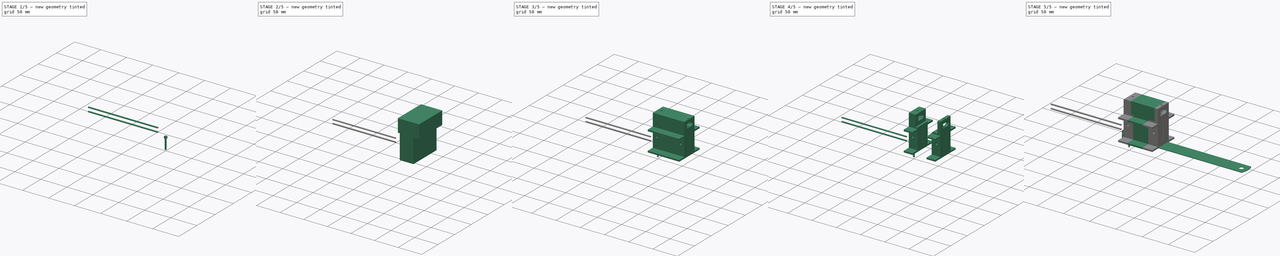
[diagram: build sequence overview — one tinted view per stage of 5, left to right]
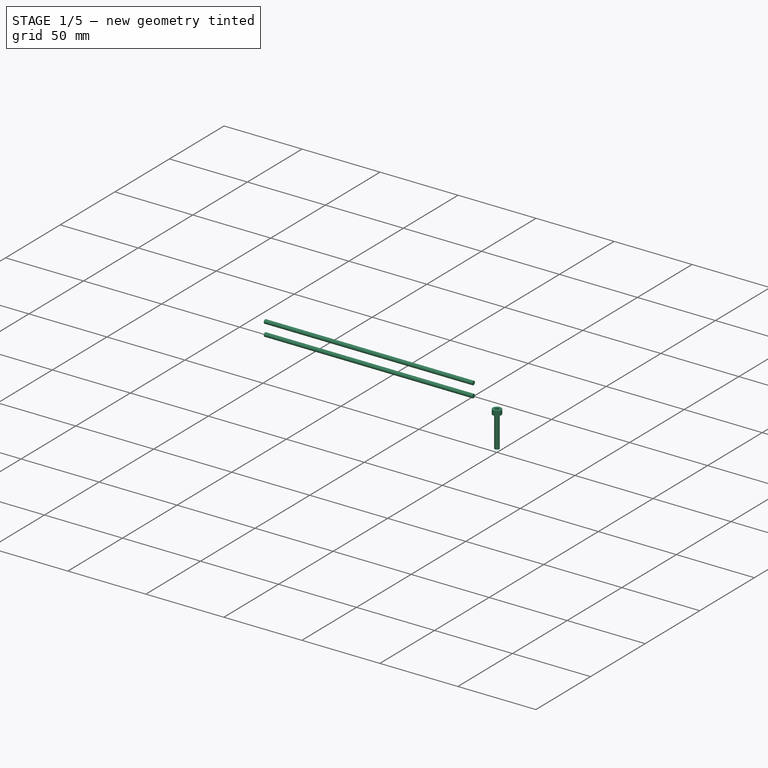
[diagram: stage 1 of 5 — iso view after this stage's code; geometry added in this stage tinted green]
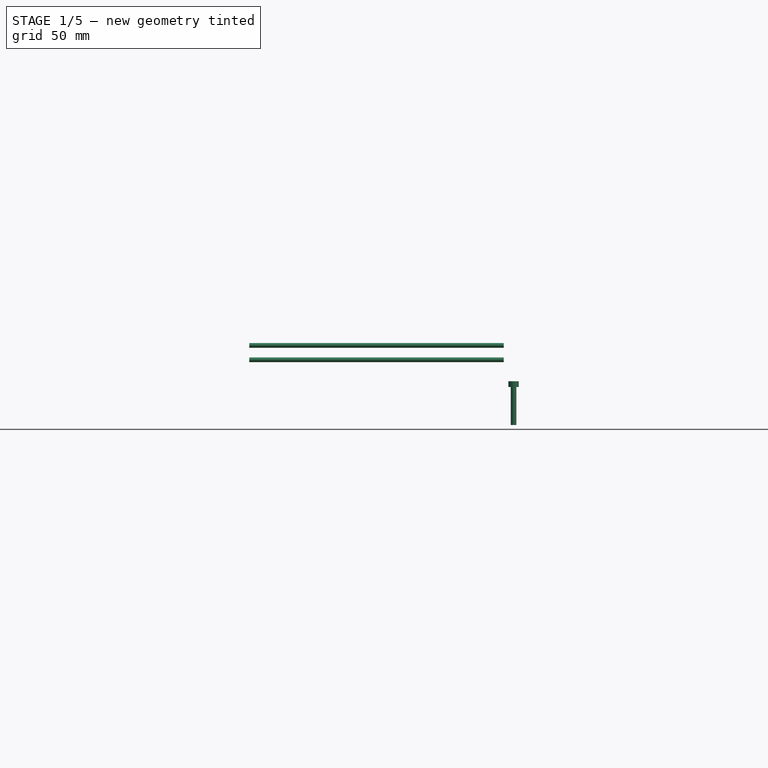
[diagram: stage 1 of 5 — front view after this stage's code; geometry added in this stage tinted green]
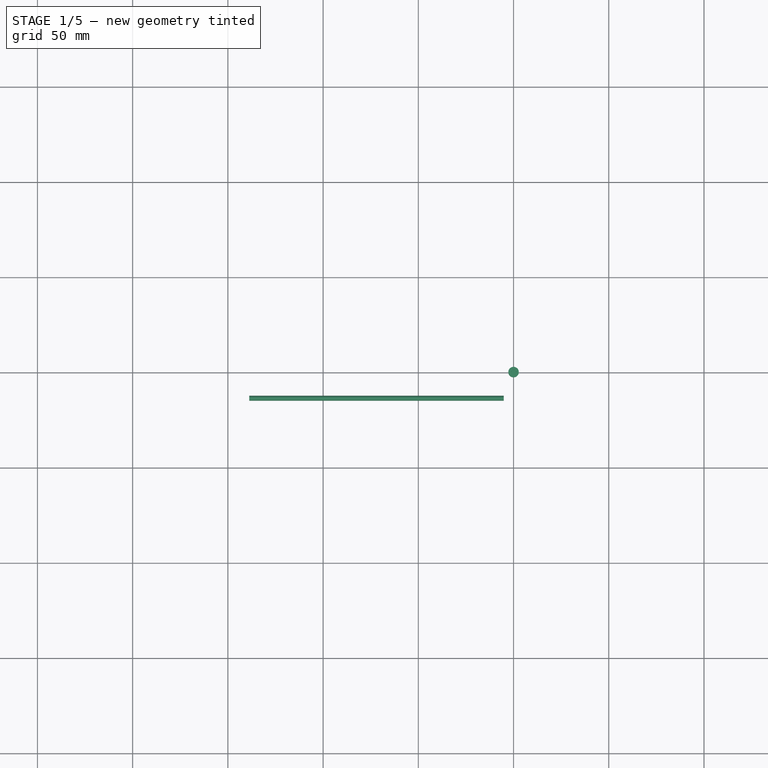
[diagram: stage 1 of 5 — top view after this stage's code; geometry added in this stage tinted green]
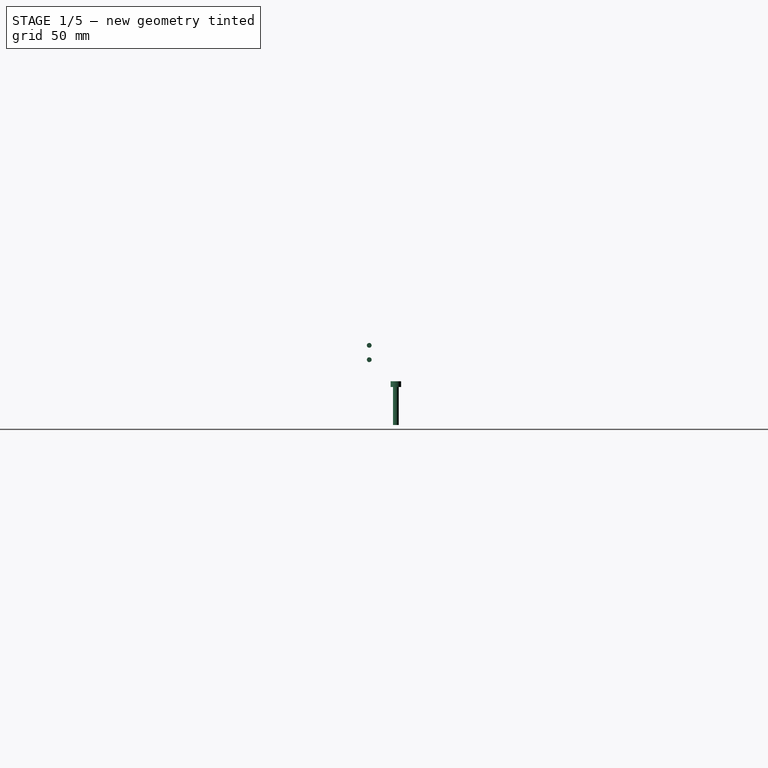
[diagram: stage 1 of 5 — right view after this stage's code; geometry added in this stage tinted green]
FCSTD DOCUMENT  (FreeCAD 0.19R24267 +148 (Git))
Label: outillageXT_v2_014
License: All rights reserved
LicenseURL: http://en.wikipedia.org/wiki/All_rights_reserved
objects: Sketcher::SketchObject×14, PartDesign::Body×10, PartDesign::Pad×9, App::Part×8, PartDesign::Plane×7, Part::Feature×6, Spreadsheet::Sheet×5, PartDesign::Pocket×4, Part::FeaturePython×4, PartDesign::Chamfer×4, PartDesign::FeatureBase×2, App::Link×2, Part::Compound2×1, App::DocumentObjectGroup×1
note: 77 computed .brp shape members not serialized (recipe doc carries the construction recipe); baked Part::Feature solids carry a one-line shape summary decoded from their .brp

FEATURE [PartDesign::Body] Body005  label="outillageMale"
  BaseFeature = -> Slice_child2
  Group = -> [Clone001,Chamfer002]
  Origin = -> Origin010
  Placement = pos=(89.6,0,0) rot=(0,0,1;0rad)
  Tip = -> Chamfer002
FEATURE [Part::Feature] Part__Feature  label="XT60FemaleConnector"
  Placement = pos=(8,-0.1,57.1) rot=(1,0,0;1.5708rad)
  shape: bbox 20.5 x 16.55 x 7.501 mm, 417 faces, 3 solids (baked)
FEATURE [Sketcher::SketchObject] Sketch006
  FullyConstrained = false
  MapMode = 5
  Support = -> [XY_Plane010]
  sketch-geometry (1):
    g0: Circle CenterX=0 CenterY=0 CenterZ=0 NormalX=0 NormalY=0 NormalZ=1 AngleXU=0 Radius=2.75
  constraints (2):
    c: Coincident(g0,g-1)
    c: Diameter(g0) = 5.5
FEATURE [PartDesign::Pad] Pad003  label="tete"
  AllowMultiFace = false
  Direction = (1,1,1)
  Length = 3
  Length2 = 100
  Profile = -> Sketch006
  Type = 0
FEATURE [Sketcher::SketchObject] Sketch007
  FullyConstrained = false
  MapMode = 5
  Placement = pos=(0,0,0) rot=(1,0,0;3.14159rad)
  Support = -> [Pad003]
  sketch-geometry (1):
    g0: Circle CenterX=0 CenterY=0 CenterZ=0 NormalX=0 NormalY=0 NormalZ=1 AngleXU=0 Radius=1.5
  constraints (2):
    c: Coincident(g0,g-1)
    c: Diameter(g0) = 3
FEATURE [PartDesign::Pad] Pad004  label="corps"
  AllowMultiFace = false
  BaseFeature = -> Pad003
  Direction = (1,1,1)
  Length = 20
  Length2 = 100
  Profile = -> Sketch007
  Type = 0
FEATURE [PartDesign::Plane] DatumPlane003  label="DatumPlane"
  AttachmentOffset = pos=(0,0,3) rot=(0,0,1;0rad)
  Length = 60
  MapMode = 5
  Placement = pos=(0,0,3) rot=(0,0,1;0rad)
  ResizeMode = 0
  Support = -> [XY_Plane010]
  Width = 60
FEATURE [Sketcher::SketchObject] Sketch008
  FullyConstrained = false
  MapMode = 5
  Placement = pos=(0,0,3) rot=(0,0,1;0rad)
  Support = -> [DatumPlane003]
  sketch-geometry (7):
    g0: LineSegment StartX=0.721688 StartY=-1.25 StartZ=0 EndX=1.44338 EndY=1.0119e-12 EndZ=0
    g1: LineSegment StartX=1.44338 StartY=1.0119e-12 StartZ=0 EndX=0.721688 EndY=1.25 EndZ=0
    g2: LineSegment StartX=0.721688 StartY=1.25 StartZ=0 EndX=-0.721688 EndY=1.25 EndZ=0
    g3: LineSegment StartX=-0.721688 StartY=1.25 StartZ=0 EndX=-1.44338 EndY=8.689e-13 EndZ=0
    g4: LineSegment StartX=-1.44338 StartY=8.689e-13 StartZ=0 EndX=-0.721688 EndY=-1.25 EndZ=0
    g5: LineSegment StartX=-0.721688 StartY=-1.25 StartZ=0 EndX=0.721688 EndY=-1.25 EndZ=0
    g6: Circle CenterX=0 CenterY=0 CenterZ=0 NormalX=0 NormalY=0 NormalZ=1 AngleXU=0 Radius=1.44338
  constraints (16):
    c: Coincident(g0,g1)
    c: Coincident(g1,g2)
    c: Coincident(g2,g3)
    c: Coincident(g3,g4)
    c: Coincident(g4,g5)
    c: Coincident(g5,g0)
    c: Equal(g0, g1-g5) x5
    c: PointOnObject(g0,g6)
    c: PointOnObject(g1,g6)
    c: PointOnObject(g2,g6)
    c: PointOnObject(g3,g6)
    c: PointOnObject(g4,g6)
    c: PointOnObject(g5,g6)
    c: Coincident(g6,g-1)
    c: Horizontal(g2)
    c: DistanceY(g0,g1) = 2.5
FEATURE [PartDesign::Pocket] Pocket002  label="emprunte"
  AllowMultiFace = false
  BaseFeature = -> Pad004
  Length = 4
  Length2 = 100
  Profile = -> Sketch008
  Type = 0
FEATURE [PartDesign::Body] Body008  label="visTHCM3x10"
  Group = -> [Sketch012,Pad007,Sketch013,Pad008,DatumPlane005,Sketch014,Pocket004]
  Origin = -> Origin015
  Tip = -> Pocket004
FEATURE [App::Link] Link  label="visM3x10Insert__002"
  LinkPlacement = pos=(151.8,-2.66194e-05,71.2) rot=(0,0,1;0rad)
  LinkedObject = -> Part004
  Placement = pos=(151.8,-2.66194e-05,71.2) rot=(0,0,1;0rad)
FEATURE [Part::Feature] Solid005  label="RUTHEX_M3x5_009"
  Placement = pos=(-11,0,0) rot=(0,0,1;0rad)
  shape: bbox 4.583 x 5.705 x 4.583 mm, 200 faces (baked)
FEATURE [App::Part] Part007  label="ZSB_RUTHEX_M3_5.008"
  Group = -> [Solid005]
  Origin = -> Origin017
  Placement = pos=(11,-1.1e-15,-4.8) rot=(1,0,0;4.71239rad)
FEATURE [App::Part] Part006  label="visM2x20Insert"
  Group = -> [Body006,Part007]
  Origin = -> Origin016
  Placement = pos=(8,19.8,25) rot=(1,0,0;4.71239rad)
FEATURE [App::Link] Link001  label="visM2x20Insert001"
  LinkPlacement = pos=(146.5,19.8,25) rot=(-1,0,0;1.5708rad)
  LinkedObject = -> Part006
  Placement = pos=(146.5,19.8,25) rot=(-1,0,0;1.5708rad)
FEATURE [Spreadsheet::Sheet] Spreadsheet004  label="tige"
  cells = A2=planBaseTigeposX; B2(planBaseTigeposX)==xtDistCorpBaseConnect; A3=xtDistCorpBaseConnect; B3(xtDistCorpBaseConnect)==12.13 - 6.95; C3=male; D3=8.46 (du bor à l'épaulement)-prof connection (6.95); A4=xtFemdistBaseConnect; B4(xtFemdistBaseConnect)==20.4 - 9.300000000000001; C4=femelle; D4=20.39(hors tou) 17.15 (du bord à l'épaulment connecteur); A5=tigeLong; B5(tigeLong)=133.62; A6=tigeJeu; B6(tigeJeu)=0.1; A7=tigePosX; B7(tigePosX)=14; A8=tigePosY; B8(tigePosY)=14.3; A9=tigeDiam; B9(tigeDiam)=2.5; A10=xtEcartBroches; B10(xtEcartBroches)=7.56
FEATURE [PartDesign::Plane] DatumPlane012  label="planBaseTige"
  AttachmentOffset = pos=(0,0,-5.18) rot=(0,0,1;0rad)
  Length = 60
  MapMode = 5
  Placement = pos=(-5.18,1.2e-15,-1.2e-15) rot=(0.57735,0.57735,0.57735;2.0944rad)
  ResizeMode = 0
  Support = -> [YZ_Plane015]
  Width = 60
  expr: .AttachmentOffset.Base.z = -<<tige>>.planBaseTigeposX
FEATURE [Sketcher::SketchObject] Sketch032  label="sk_tiges"
  FullyConstrained = true
  MapMode = 5
  Placement = pos=(-5.18,1.2e-15,-1.2e-15) rot=(0.57735,0.57735,0.57735;2.0944rad)
  Support = -> [DatumPlane012]
  expr: Constraints[2] = <<tige>>.tigePosX
  expr: Constraints[1] = <<tige>>.tigePosY
  expr: Constraints[0] = <<tige>>.tigeDiam
  sketch-geometry (1):
    g0: Circle CenterX=-14 CenterY=14.3 CenterZ=0 NormalX=0 NormalY=0 NormalZ=1 AngleXU=0 Radius=1.25
  constraints (3):
    c: Diameter(g0) = 2.5
    c: DistanceY(g-1,g0) = 14.3
    c: DistanceX(g0,g-1) = 14
FEATURE [PartDesign::Pad] Pad017  label="tigeBasse"
  AllowMultiFace = false
  Direction = (1,1,1)
  Length = 133.62
  Length2 = 100
  Placement = pos=(-5.18,1e-15,-1e-15) rot=(0.57735,0.57735,0.57735;2.0944rad)
  Profile = -> Sketch032
  Reversed = true
  Type = 0
  expr: Length = <<tige>>.tigeLong
FEATURE [PartDesign::Body] Body007  label="tigeLaiton"
  Group = -> [DatumPlane012,Sketch032,Pad017]
  Origin = -> Origin018
  Tip = -> Pad017
FEATURE [PartDesign::Plane] DatumPlane013  label="planTige2"
  AttachmentOffset = pos=(0,0,-5.18) rot=(0,0,1;0rad)
  Length = 60
  MapMode = 5
  Placement = pos=(-5.18,1.2e-15,-1.2e-15) rot=(0.57735,0.57735,0.57735;2.0944rad)
  ResizeMode = 0
  Support = -> [YZ_Plane017]
  Width = 60
  expr: .AttachmentOffset.Base.z = -<<tige>>.planBaseTigeposX
FEATURE [Sketcher::SketchObject] Sketch033  label="sk_tige2"
  FullyConstrained = true
  MapMode = 5
  Placement = pos=(-5.18,1.2e-15,-1.2e-15) rot=(0.57735,0.57735,0.57735;2.0944rad)
  Support = -> [DatumPlane013]
  expr: Constraints[2] = <<tige>>.tigePosY + <<tige>>.xtEcartBroches
  expr: Constraints[1] = <<tige>>.tigePosX
  expr: Constraints[0] = <<tige>>.tigeDiam
  sketch-geometry (1):
    g0: Circle CenterX=-14 CenterY=21.86 CenterZ=0 NormalX=0 NormalY=0 NormalZ=1 AngleXU=0 Radius=1.25
  constraints (3):
    c: Diameter(g0) = 2.5
    c: DistanceX(g0,g-1) = 14
    c: DistanceY(g-1,g0) = 21.86
FEATURE [PartDesign::Pad] Pad018
  AllowMultiFace = false
  Direction = (1,1,1)
  Length = 133.62
  Length2 = 100
  Placement = pos=(-5.18,1e-15,-1e-15) rot=(0.57735,0.57735,0.57735;2.0944rad)
  Profile = -> Sketch033
  Reversed = true
  Type = 0
  expr: Length = <<tige>>.tigeLong
FEATURE [PartDesign::Body] Body009  label="tige2"
  Group = -> [DatumPlane013,Sketch033,Pad018]
  Origin = -> Origin020
  Tip = -> Pad018
FEATURE [App::Part] Part009  label="tigeLaiton001"
  Group = -> [Body007,Spreadsheet004,Body009]
  Origin = -> Origin019
  Placement = pos=(152.2,19.5,71) rot=(1,0,0;1.5708rad)
FEATURE [Spreadsheet::Sheet] Spreadsheet005  label="insert"
  cells = A1=trouDiam; B1(trouDiam)=4
FEATURE [App::Part] Part005  label="ZSB_RUTHEX_M3_5.7"
  Group = -> [Solid004,Spreadsheet005]
  Origin = -> Origin014
  Placement = pos=(11,-6e-16,-2.9) rot=(1,0,0;4.71239rad)
FEATURE [App::Part] Part004  label="visM3x10Insert__01"
  Group = -> [Part005,Body008]
  Origin = -> Origin013
  Placement = pos=(7,0,71.2) rot=(0,0,1;0rad)
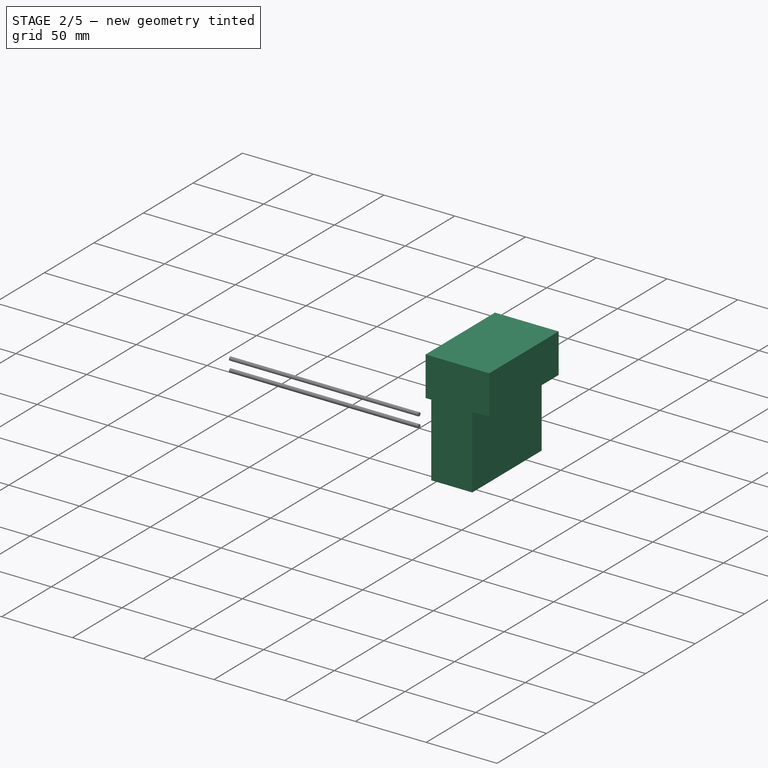
[diagram: stage 2 of 5 — iso view after this stage's code; geometry added in this stage tinted green]
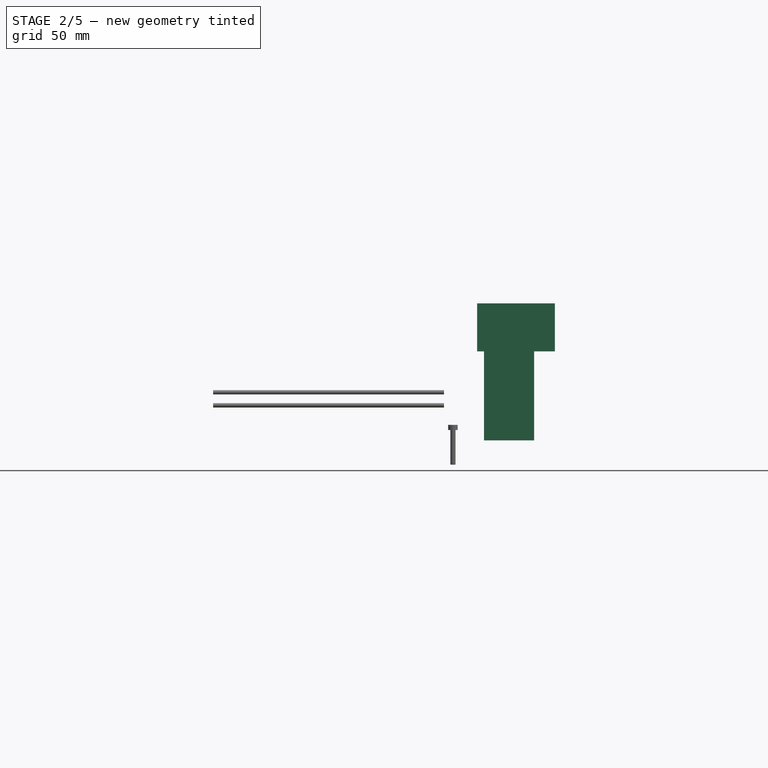
[diagram: stage 2 of 5 — front view after this stage's code; geometry added in this stage tinted green]
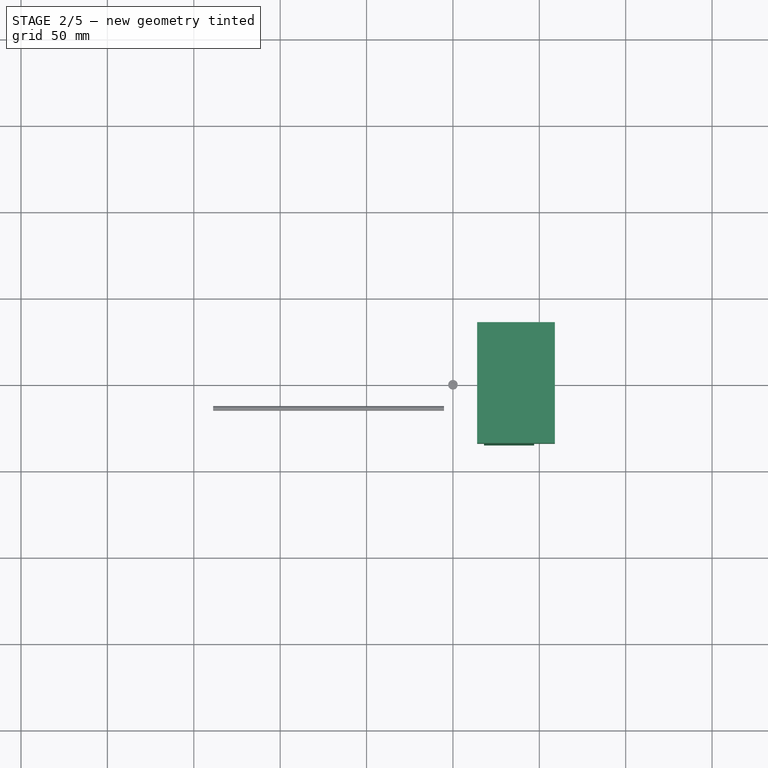
[diagram: stage 2 of 5 — top view after this stage's code; geometry added in this stage tinted green]
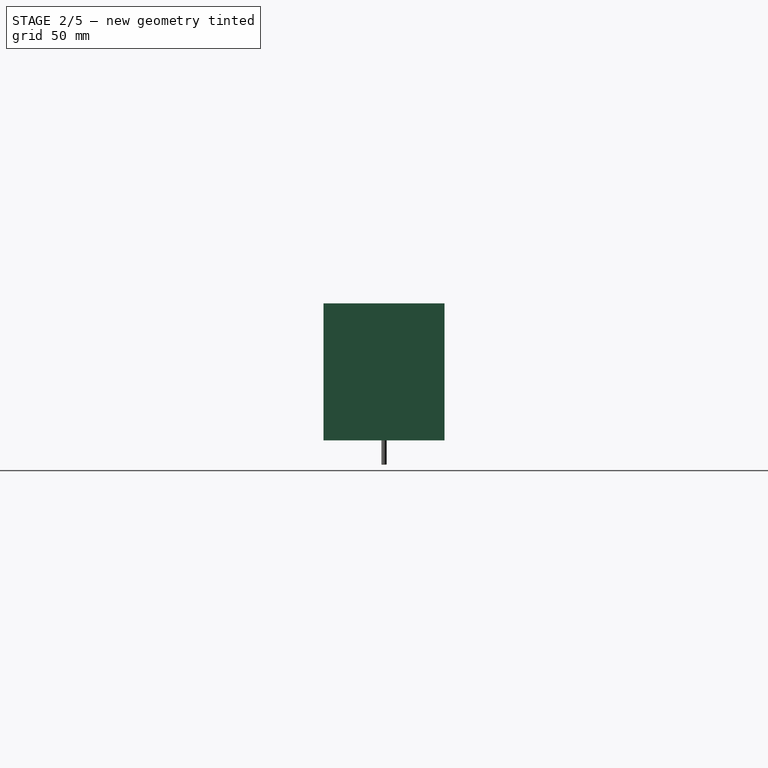
[diagram: stage 2 of 5 — right view after this stage's code; geometry added in this stage tinted green]
FEATURE [PartDesign::Body] Body  label="outillageXtBdy"
  Group = -> [Sketch002,Pad001,DatumPlane,Sketch003,Pocket,DatumPlane001,Sketch004,Pocket001]
  Origin = -> Origin007
  Tip = -> Pocket001
FEATURE [PartDesign::Plane] DatumPlane002
  AttachmentOffset = pos=(0,0,35) rot=(0,0,1;0rad)
  Length = 102.174
  MapMode = 5
  Placement = pos=(0,-35,-7.8e-15) rot=(1,0,0;1.5708rad)
  ResizeMode = 0
  Support = -> [XZ_Plane007]
  Width = 116.474
  expr: .AttachmentOffset.Base.z = <<outillageXtSp>>.ep / 2 + <<outillageXtSp>>.piedLong + 5
FEATURE [Sketcher::SketchObject] Sketch005
  FullyConstrained = true
  MapMode = 5
  Placement = pos=(0,-35,-7.8e-15) rot=(1,0,0;1.5708rad)
  Support = -> [DatumPlane002]
  expr: Constraints[20] = <<outillageXtSp>>.outillargInit - <<outillageXtSp>>.OreilleMaleLarg
  expr: Constraints[16] = <<outillageXtSp>>.hauteurTotale + 5
  expr: Constraints[22] = <<outillageXtSp>>.baseLarg
  expr: Constraints[17] = <<outillageXtSp>>.reglettePosVert + <<regletSp>>.larg + <<outillageXtSp>>.xtRegletDist / 2
  expr: Constraints[23] = <<outillageXtSp>>.outillargInit - <<outillageXtSp>>.baseLarg
  expr: Constraints[19] = <<outillageXtSp>>.OreilleFemLarg
  sketch-geometry (8):
    g0: LineSegment StartX=14 StartY=73.3 StartZ=0 EndX=14 EndY=45.5 EndZ=0
    g1: LineSegment StartX=14 StartY=45.5 StartZ=0 EndX=18 EndY=45.5 EndZ=0
    g2: LineSegment StartX=18 StartY=45.5 StartZ=0 EndX=18 EndY=-6 EndZ=0
    g3: LineSegment StartX=18 StartY=-6 StartZ=0 EndX=47 EndY=-6 EndZ=0
    g4: LineSegment StartX=47 StartY=-6 StartZ=0 EndX=47 EndY=45.5 EndZ=0
    g5: LineSegment StartX=47 StartY=45.5 StartZ=0 EndX=59 EndY=45.5 EndZ=0
    g6: LineSegment StartX=59 StartY=45.5 StartZ=0 EndX=59 EndY=73.3 EndZ=0
    g7: LineSegment StartX=59 StartY=73.3 StartZ=0 EndX=14 EndY=73.3 EndZ=0
  constraints (24):
    c: Vertical(g0)
    c: Coincident(g0,g1)
    c: Horizontal(g1)
    c: Coincident(g1,g2)
    c: Vertical(g2)
    c: Horizontal(g3)
    c: Coincident(g3,g4)
    c: Vertical(g4)
    c: Coincident(g4,g5)
    c: Horizontal(g5)
    c: Coincident(g5,g6)
    c: Vertical(g6)
    c: Coincident(g6,g7)
    c: Coincident(g7,g0)
    c: Horizontal(g7)
    c: DistanceY(g2,g-1) = 6
    c: DistanceY(g-1,g0) = 73.3
    c: DistanceY(g-1,g0) = 45.5
    c: Horizontal(g1,g4)
    c: DistanceX(g-1,g0) = 14
    c: DistanceX(g-1,g5) = 59
    c: Coincident(g3,g2)
    c: DistanceX(g-1,g2) = 18
    c: DistanceX(g-1,g3) = 47
FEATURE [PartDesign::Pad] Pad002
  Direction = (1,1,1)
  Length = 70
  Length2 = 100
  Placement = pos=(0,-35,-8e-15) rot=(1,0,0;1.5708rad)
  Profile = -> Sketch005
  Reversed = true
  Type = 0
  expr: Length = <<outillageXtSp>>.ep + 2 * <<outillageXtSp>>.piedLong + 10
FEATURE [PartDesign::Chamfer] Chamfer004
  Angle = 45
  Base = -> Pocket002 [Edge12,Edge2,Edge3]
  BaseFeature = -> Pocket002
  ChamferType = 0
  FlipDirection = false
  Size = 0.2
  Size2 = 1
  SupportTransform = false
FEATURE [PartDesign::Body] Body006  label="visTHCM3x20_001"
  Group = -> [Sketch006,Pad003,Sketch007,Pad004,DatumPlane003,Sketch008,Pocket002,Chamfer004]
  Origin = -> Origin011
  Tip = -> Chamfer004
FEATURE [Part::Feature] Solid004  label="RUTHEX_M3x5_008"
  Placement = pos=(-11,0,0) rot=(0,0,1;0rad)
  shape: bbox 4.583 x 5.705 x 4.583 mm, 200 faces (baked)
FEATURE [Sketcher::SketchObject] Sketch012
  FullyConstrained = false
  MapMode = 5
  Support = -> [XY_Plane013]
  sketch-geometry (1):
    g0: Circle CenterX=0 CenterY=0 CenterZ=0 NormalX=0 NormalY=0 NormalZ=1 AngleXU=0 Radius=2.75
  constraints (2):
    c: Coincident(g0,g-1)
    c: Diameter(g0) = 5.5
FEATURE [PartDesign::Pad] Pad007  label="tete002"
  AllowMultiFace = false
  Direction = (1,1,1)
  Length = 3
  Length2 = 100
  Profile = -> Sketch012
  Type = 0
FEATURE [Sketcher::SketchObject] Sketch013
  FullyConstrained = false
  MapMode = 5
  Placement = pos=(0,0,0) rot=(1,0,0;3.14159rad)
  Support = -> [Pad007]
  sketch-geometry (1):
    g0: Circle CenterX=0 CenterY=0 CenterZ=0 NormalX=0 NormalY=0 NormalZ=1 AngleXU=0 Radius=1.5
  constraints (2):
    c: Coincident(g0,g-1)
    c: Diameter(g0) = 3
FEATURE [PartDesign::Pad] Pad008  label="corps002"
  AllowMultiFace = false
  BaseFeature = -> Pad007
  Direction = (1,1,1)
  Length = 10
  Length2 = 100
  Profile = -> Sketch013
  Type = 0
FEATURE [PartDesign::Plane] DatumPlane005
  AttachmentOffset = pos=(0,0,3) rot=(0,0,1;0rad)
  Length = 60
  MapMode = 5
  Placement = pos=(0,0,3) rot=(0,0,1;0rad)
  ResizeMode = 0
  Support = -> [XY_Plane013]
  Width = 60
FEATURE [Sketcher::SketchObject] Sketch014
  FullyConstrained = false
  MapMode = 5
  Placement = pos=(0,0,3) rot=(0,0,1;0rad)
  Support = -> [DatumPlane005]
  sketch-geometry (7):
    g0: LineSegment StartX=0.721688 StartY=-1.25 StartZ=0 EndX=1.44338 EndY=1.0119e-12 EndZ=0
    g1: LineSegment StartX=1.44338 StartY=1.0119e-12 StartZ=0 EndX=0.721688 EndY=1.25 EndZ=0
    g2: LineSegment StartX=0.721688 StartY=1.25 StartZ=0 EndX=-0.721688 EndY=1.25 EndZ=0
    g3: LineSegment StartX=-0.721688 StartY=1.25 StartZ=0 EndX=-1.44338 EndY=8.689e-13 EndZ=0
    g4: LineSegment StartX=-1.44338 StartY=8.689e-13 StartZ=0 EndX=-0.721688 EndY=-1.25 EndZ=0
    g5: LineSegment StartX=-0.721688 StartY=-1.25 StartZ=0 EndX=0.721688 EndY=-1.25 EndZ=0
    g6: Circle CenterX=0 CenterY=0 CenterZ=0 NormalX=0 NormalY=0 NormalZ=1 AngleXU=0 Radius=1.44338
  constraints (16):
    c: Coincident(g0,g1)
    c: Coincident(g1,g2)
    c: Coincident(g2,g3)
    c: Coincident(g3,g4)
    c: Coincident(g4,g5)
    c: Coincident(g5,g0)
    c: Equal(g0, g1-g5) x5
    c: PointOnObject(g0,g6)
    c: PointOnObject(g1,g6)
    c: PointOnObject(g2,g6)
    c: PointOnObject(g3,g6)
    c: PointOnObject(g4,g6)
    c: PointOnObject(g5,g6)
    c: Coincident(g6,g-1)
    c: Horizontal(g2)
    c: DistanceY(g0,g1) = 2.5
FEATURE [PartDesign::Pocket] Pocket004  label="emprunte002"
  AllowMultiFace = false
  BaseFeature = -> Pad008
  Length = 4
  Length2 = 100
  Profile = -> Sketch014
  Type = 0
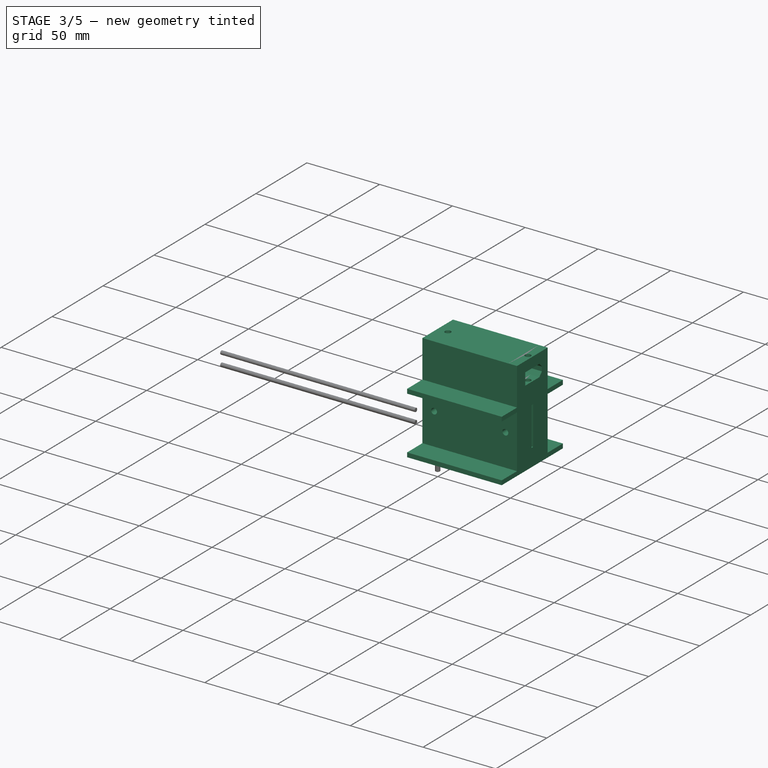
[diagram: stage 3 of 5 — iso view after this stage's code; geometry added in this stage tinted green]
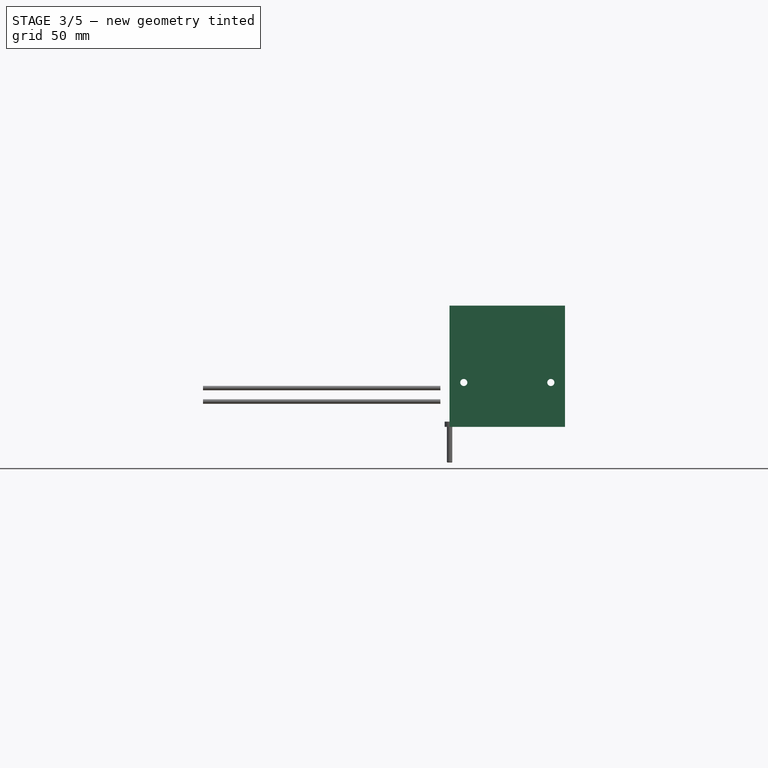
[diagram: stage 3 of 5 — front view after this stage's code; geometry added in this stage tinted green]
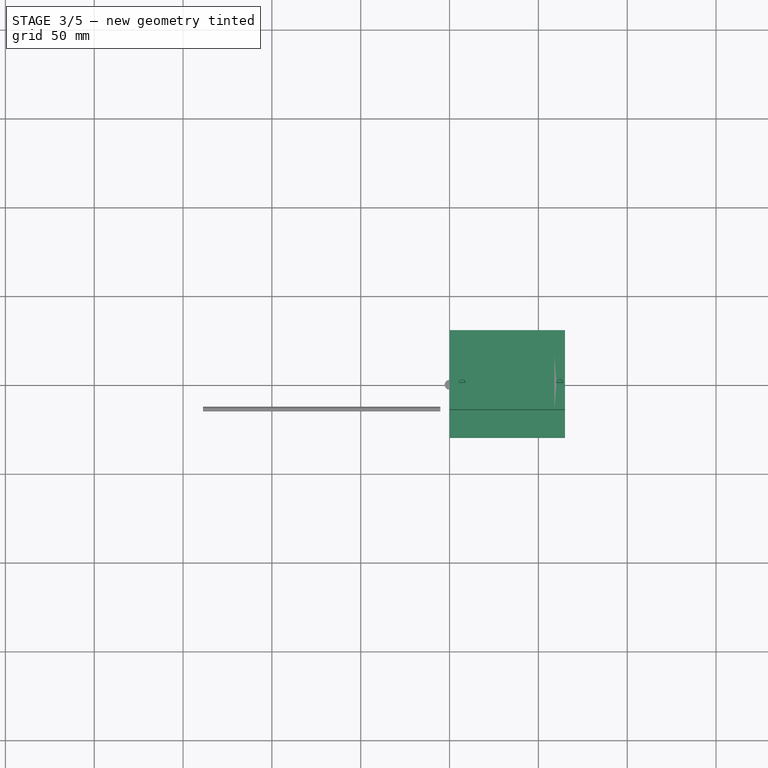
[diagram: stage 3 of 5 — top view after this stage's code; geometry added in this stage tinted green]
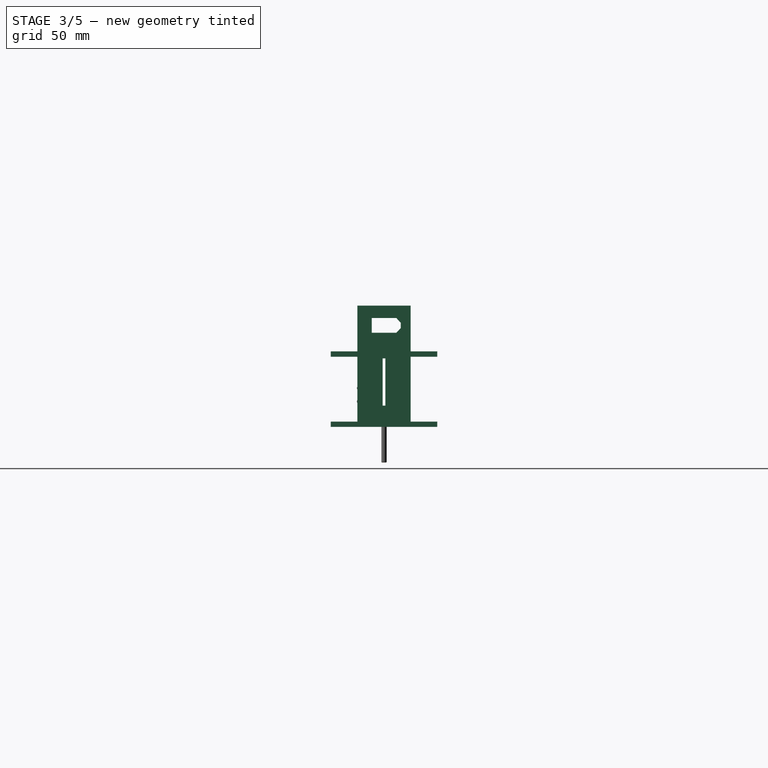
[diagram: stage 3 of 5 — right view after this stage's code; geometry added in this stage tinted green]
FEATURE [PartDesign::Body] Body001  label="regletBdy"
  Group = -> [Sketch,Pad]
  Origin = -> Origin003
  Tip = -> Pad
FEATURE [App::Part] Part001  label="reglet"
  Group = -> [Body001,Spreadsheet001]
  Origin = -> Origin002
  Placement = pos=(0,-5.6e-15,25.3) rot=(1,0,0;1.5708rad)
FEATURE [Spreadsheet::Sheet] Spreadsheet  label="outillageXtSp"
  cells = A1=renfortEp; B1(renfortEp)=7; A2=jeuFonct; B2(jeuFonct)=0.6; A3=reglettePosVert; B3(reglettePosVert)=12; A4=xtRegletDist; B4(xtRegletDist)=15; A5=xtPosVert; B5(xtPosVert)==reglettePosVert + <<regletSp>>.larg + xtRegletDist; A6=ep; B6(ep)=30; A7=piedLong; B7(piedLong)=15; A8=piedLarg; B8(piedLarg)=20; A9=insertPosVert; B9(insertPosVert)==reglettePosVert + <<regletSp>>.larg / 2; A10=insertPosHor; B10(insertPosHor)=8; A11=piedEp; B11(piedEp)=3; A12=outillargInit; B12(outillargInit)=65; A13=OreilleMaleLarg; B13(OreilleMaleLarg)=6; A14=hauteurTotale; B14(hauteurTotale)==xtPosVert + renfortEp + <<xtSp>>.base; A15=OreilleFemLarg; B15(OreilleFemLarg)=14; A16=baseLarg; B16(baseLarg)=18
FEATURE [Sketcher::SketchObject] Sketch002
  FullyConstrained = true
  MapMode = 5
  Placement = pos=(0,0,0) rot=(0.57735,0.57735,0.57735;2.0944rad)
  Support = -> [YZ_Plane]
  expr: Constraints[19] = <<outillageXtSp>>.ep
  expr: Constraints[21] = <<outillageXtSp>>.piedEp
  expr: Constraints[30] = <<regletSp>>.ep + <<outillageXtSp>>.jeuFonct
  expr: Constraints[31] = <<outillageXtSp>>.reglettePosVert
  expr: Constraints[44] = <<xtSp>>.base
  expr: Constraints[48] = <<xtSp>>.fetierLarg
  expr: Constraints[52] = <<outillageXtSp>>.xtPosVert
  expr: Constraints[46] = <<xtSp>>.haut + <<outillageXtSp>>.jeuFonct
  expr: Constraints[70] = <<outillageXtSp>>.piedEp
  expr: Constraints[29] = <<regletSp>>.larg + <<outillageXtSp>>.jeuFonct
  expr: Constraints[47] = <<xtSp>>.toitHaut
  expr: Constraints[20] = <<outillageXtSp>>.piedLong
  expr: Constraints[33] = <<outillageXtSp>>.hauteurTotale
  expr: Constraints[71] = <<outillageXtSp>>.reglettePosVert + <<regletSp>>.larg + <<outillageXtSp>>.xtRegletDist / 2 - 3
  sketch-geometry (28):
    g0: LineSegment StartX=30 StartY=0 StartZ=0 EndX=-30 EndY=0 EndZ=0
    g1: LineSegment StartX=-30 StartY=0 StartZ=0 EndX=-30 EndY=3 EndZ=0
    g2: LineSegment StartX=-30 StartY=3 StartZ=0 EndX=-15 EndY=3 EndZ=0
    g3: LineSegment StartX=-15 StartY=3 StartZ=0 EndX=-15 EndY=39.5 EndZ=0
    g4: LineSegment StartX=30 StartY=0 StartZ=0 EndX=30 EndY=3 EndZ=0
    g5: LineSegment StartX=30 StartY=3 StartZ=0 EndX=15 EndY=3 EndZ=0
    g6: LineSegment StartX=15 StartY=3 StartZ=0 EndX=15 EndY=39.5 EndZ=0
    g7: LineSegment StartX=-15 StartY=68.3 StartZ=0 EndX=15 EndY=68.3 EndZ=0
    g8: LineSegment StartX=0.8 StartY=38.6 StartZ=0 EndX=-0.8 EndY=38.6 EndZ=0
    g9: LineSegment StartX=-0.8 StartY=38.6 StartZ=0 EndX=-0.8 EndY=12 EndZ=0
    g10: LineSegment StartX=-0.8 StartY=12 StartZ=0 EndX=0.8 EndY=12 EndZ=0
    g11: LineSegment StartX=0.8 StartY=12 StartZ=0 EndX=0.8 EndY=38.6 EndZ=0
    g12: LineSegment StartX=-6.925 StartY=53 StartZ=0 EndX=6.925 EndY=53 EndZ=0
    g13: LineSegment StartX=6.925 StartY=53 StartZ=0 EndX=9.425 EndY=55.65 EndZ=0
    g14: LineSegment StartX=9.425 StartY=55.65 StartZ=0 EndX=9.425 EndY=58.65 EndZ=0
    g15: LineSegment StartX=9.425 StartY=58.65 StartZ=0 EndX=6.925 EndY=61.3 EndZ=0
    g16: LineSegment StartX=6.925 StartY=61.3 StartZ=0 EndX=-6.925 EndY=61.3 EndZ=0
    g17: LineSegment StartX=-6.925 StartY=61.3 StartZ=0 EndX=-6.925 EndY=53 EndZ=0
    g18: LineSegment StartX=0 StartY=0 StartZ=0 EndX=0 EndY=53 EndZ=0
    g19: LineSegment StartX=-6.925 StartY=57.15 StartZ=0 EndX=9.425 EndY=57.15 EndZ=0
    g20: LineSegment StartX=-15 StartY=42.5 StartZ=0 EndX=-30 EndY=42.5 EndZ=0
    g21: LineSegment StartX=-30 StartY=42.5 StartZ=0 EndX=-30 EndY=39.5 EndZ=0
    g22: LineSegment StartX=-30 StartY=39.5 StartZ=0 EndX=-15 EndY=39.5 EndZ=0
    g23: LineSegment StartX=15 StartY=42.5 StartZ=0 EndX=30 EndY=42.5 EndZ=0
    g24: LineSegment StartX=30 StartY=42.5 StartZ=0 EndX=30 EndY=39.5 EndZ=0
    g25: LineSegment StartX=30 StartY=39.5 StartZ=0 EndX=15 EndY=39.5 EndZ=0
    g26: LineSegment StartX=15 StartY=42.5 StartZ=0 EndX=15 EndY=68.3 EndZ=0
    g27: LineSegment StartX=-15 StartY=42.5 StartZ=0 EndX=-15 EndY=68.3 EndZ=0
  constraints (78):
    c: PointOnObject(g0,g-1)
    c: PointOnObject(g0,g-1)
    c: Coincident(g0,g1)
    c: Vertical(g1)
    c: Coincident(g1,g2)
    c: Horizontal(g2)
    c: Coincident(g2,g3)
    c: Vertical(g3)
    c: Coincident(g0,g4)
    c: Coincident(g4,g5)
    c: Horizontal(g5)
    c: Coincident(g5,g6)
    c: Vertical(g6)
    c: Symmetric(g2,g5,g-2)
    c: Vertical(g4)
    c: Equal(g2,g5)
    c: Coincident(g7,g27)
    c: Coincident(g7,g26)
    c: Horizontal(g7)
    c: DistanceX(g2,g5) = 30
    c: DistanceX(g2,g2) = 15
    c: DistanceY(g1,g1) = 3
    c: Coincident(g8,g9)
    c: Coincident(g9,g10)
    c: Coincident(g10,g11)
    c: Coincident(g11,g8)
    c: Horizontal(g10)
    c: Vertical(g9)
    c: Vertical(g11)
    c: DistanceY(g9,g9) = 26.6
    c: DistanceX(g10,g10) = 1.6
    c: DistanceY(g-1,g10) = 12
    c: Symmetric(g8,g8,g-2)
    c: DistanceY(g-1,g26) = 68.3
    c: Horizontal(g12)
    c: Coincident(g12,g13)
    c: Coincident(g13,g14)
    c: Vertical(g14)
    c: Coincident(g14,g15)
    c: Coincident(g15,g16)
    c: Horizontal(g16)
    c: Coincident(g16,g17)
    c: Coincident(g17,g12)
    c: Vertical(g17)
    c: DistanceY(g17,g17) = 8.3
    c: Equal(g12,g16)
    c: DistanceX(g12,g12) = 13.85
    c: DistanceX(g12,g13) = 2.5
    c: DistanceY(g14,g14) = 3
    c: Coincident(g18,g-1)
    c: Vertical(g18)
    c: Symmetric(g12,g12,g18)
    c: DistanceY(g18,g18) = 53
    c: Horizontal(g19)
    c: Symmetric(g12,g16,g19)
    c: Symmetric(g13,g14,g19)
    c: Coincident(g20,g21)
    c: Coincident(g21,g22)
    c: Horizontal(g20)
    c: Horizontal(g22)
    c: Vertical(g21)
    c: Coincident(g23,g24)
    c: Coincident(g24,g25)
    c: Horizontal(g23)
    c: Horizontal(g25)
    c: Vertical(g24)
    c: Vertical(g4,g24)
    c: Vertical(g1,g21)
    c: Equal(g24,g21)
    c: Horizontal(g22,g25)
    c: DistanceY(g21,g21) = 3
    c: DistanceY(g0,g23) = 42.5
    c: Coincident(g26,g23)
    c: Tangent(g6,g26)
    c: Coincident(g27,g20)
    c: Tangent(g3,g27)
    c: Coincident(g22,g3)
    c: Coincident(g6,g25)
FEATURE [PartDesign::Pad] Pad001
  Direction = (1,1,1)
  Length = 65
  Length2 = 100
  Placement = pos=(0,0,0) rot=(0.57735,0.57735,0.57735;2.0944rad)
  Profile = -> Sketch002
  Type = 0
  expr: Length = <<outillageXtSp>>.outillargInit
FEATURE [PartDesign::Plane] DatumPlane  label="planFaArr"
  AttachmentOffset = pos=(0,0,-15) rot=(0,0,1;0rad)
  Length = 108.327
  MapMode = 5
  Placement = pos=(0,15,3.3e-15) rot=(1,0,0;1.5708rad)
  ResizeMode = 0
  Support = -> [XZ_Plane006]
  Width = 111.627
  expr: .AttachmentOffset.Base.z = -<<outillageXtSp>>.ep / 2
FEATURE [Sketcher::SketchObject] Sketch003
  FullyConstrained = true
  MapMode = 5
  Placement = pos=(0,15,3.3e-15) rot=(1,0,0;1.5708rad)
  Support = -> [DatumPlane]
  expr: Constraints[7] = <<outillageXtSp>>.outillargInit - <<outillageXtSp>>.insertPosHor
  expr: Constraints[6] = <<outillageXtSp>>.insertPosHor
  expr: Constraints[0] = <<outillageXtSp>>.insertPosVert
  expr: Constraints[1] = <<insert>>.trouDiam
  sketch-geometry (3):
    g0: Circle CenterX=8 CenterY=25 CenterZ=0 NormalX=0 NormalY=0 NormalZ=1 AngleXU=0 Radius=2
    g1: Circle CenterX=57 CenterY=25 CenterZ=0 NormalX=0 NormalY=0 NormalZ=1 AngleXU=0 Radius=2
    g2: LineSegment StartX=8 StartY=25 StartZ=0 EndX=57 EndY=25 EndZ=0
  constraints (8):
    c: DistanceY(g-1,g0) = 25
    c: Diameter(g0) = 4
    c: Coincident(g2,g0)
    c: Coincident(g2,g1)
    c: Horizontal(g2)
    c: Equal(g1,g0)
    c: DistanceX(g-1,g0) = 8
    c: DistanceX(g-1,g1) = 57
FEATURE [PartDesign::Pocket] Pocket
  BaseFeature = -> Pad001
  Length = 5
  Length2 = 100
  Placement = pos=(0,0,0) rot=(0.57735,0.57735,0.57735;2.0944rad)
  Profile = -> Sketch003
  Reversed = true
  Type = 1
FEATURE [PartDesign::Plane] DatumPlane001  label="planSup"
  AttachmentOffset = pos=(0,0,68.3) rot=(0,0,1;0rad)
  Length = 104.697
  MapMode = 5
  Placement = pos=(0,0,68.3) rot=(0,0,1;0rad)
  ResizeMode = 0
  Support = -> [XY_Plane006]
  Width = 74.6969
  expr: .AttachmentOffset.Base.z = <<outillageXtSp>>.hauteurTotale
FEATURE [Sketcher::SketchObject] Sketch004
  FullyConstrained = true
  MapMode = 5
  Placement = pos=(0,0,68.3) rot=(0,0,1;0rad)
  Support = -> [DatumPlane001]
  expr: Constraints[5] = <<outillageXtSp>>.outillargInit - <<outillageXtSp>>.OreilleMaleLarg / 2
  expr: Constraints[4] = <<outillageXtSp>>.OreilleFemLarg / 2
  expr: Constraints[3] = <<insert>>.trouDiam
  sketch-geometry (2):
    g0: Circle CenterX=7 CenterY=0 CenterZ=0 NormalX=0 NormalY=0 NormalZ=1 AngleXU=0 Radius=2
    g1: Circle CenterX=62 CenterY=0 CenterZ=0 NormalX=0 NormalY=0 NormalZ=1 AngleXU=0 Radius=2
  constraints (6):
    c: PointOnObject(g0,g-1)
    c: PointOnObject(g1,g-1)
    c: Equal(g0,g1)
    c: Diameter(g0) = 4
    c: DistanceX(g-1,g0) = 7
    c: DistanceX(g-1,g1) = 62
FEATURE [PartDesign::Pocket] Pocket001
  BaseFeature = -> Pocket
  Length = 0
  Length2 = 100
  Placement = pos=(0,0,0) rot=(0.57735,0.57735,0.57735;2.0944rad)
  Profile = -> Sketch004
  Type = 3
  UpToFace = -> Pocket [Face19]
FEATURE [PartDesign::Body] Body003  label="cutter"
  Group = -> [DatumPlane002,Sketch005,Pad002]
  Origin = -> Origin008
  Tip = -> Pad002
FEATURE [App::Part] Part  label="outillageXt"
  Group = -> [Body,Spreadsheet,Body003]
  Origin = -> Origin
FEATURE [Part::FeaturePython] Slice  # WARN: FeaturePython — macro-defined, semantics opaque (R4)
  Base = -> Body
  Mode = 1
  Tolerance = 0
  Tools = -> [Body003]
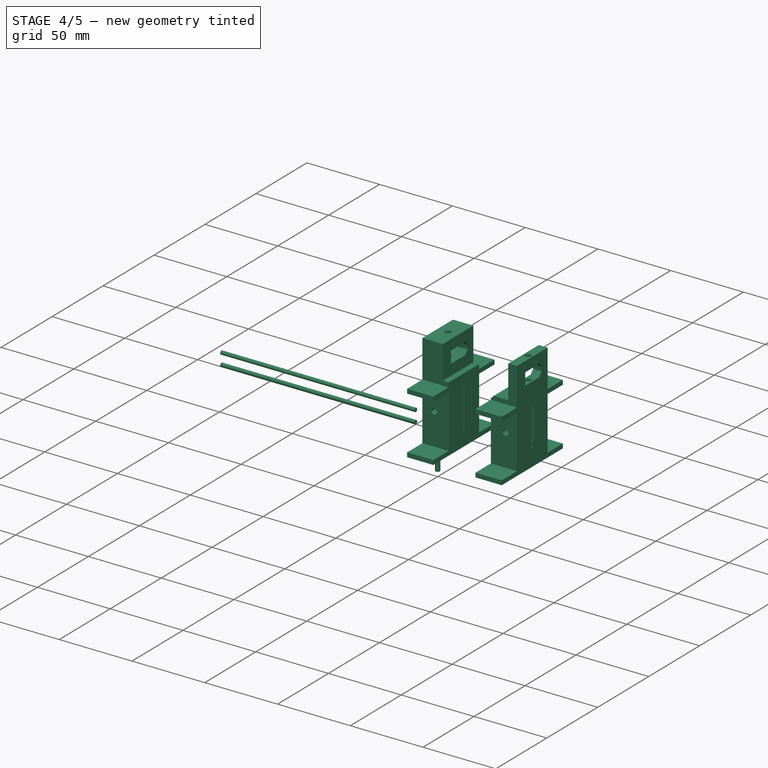
[diagram: stage 4 of 5 — iso view after this stage's code; geometry added in this stage tinted green]
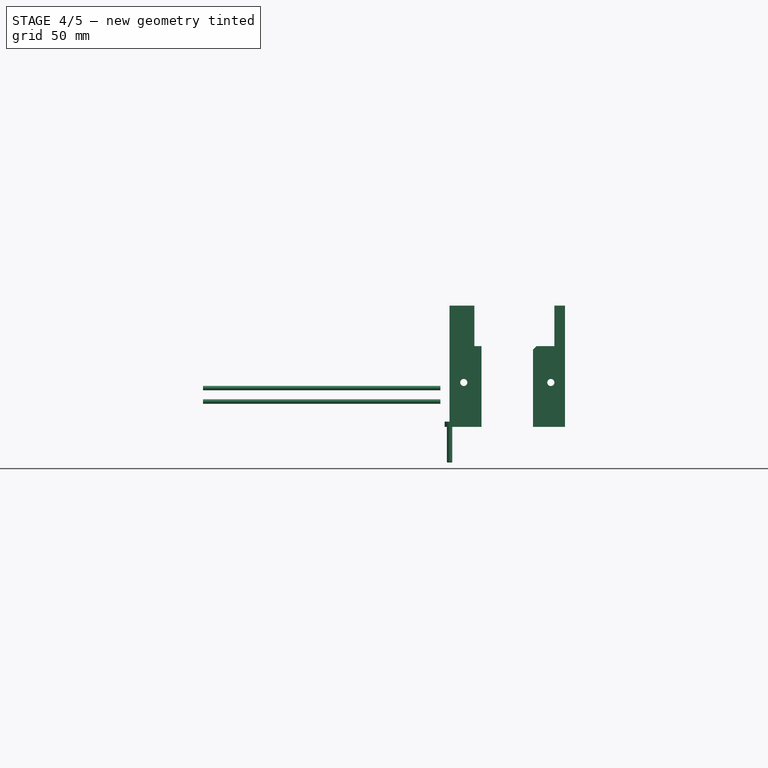
[diagram: stage 4 of 5 — front view after this stage's code; geometry added in this stage tinted green]
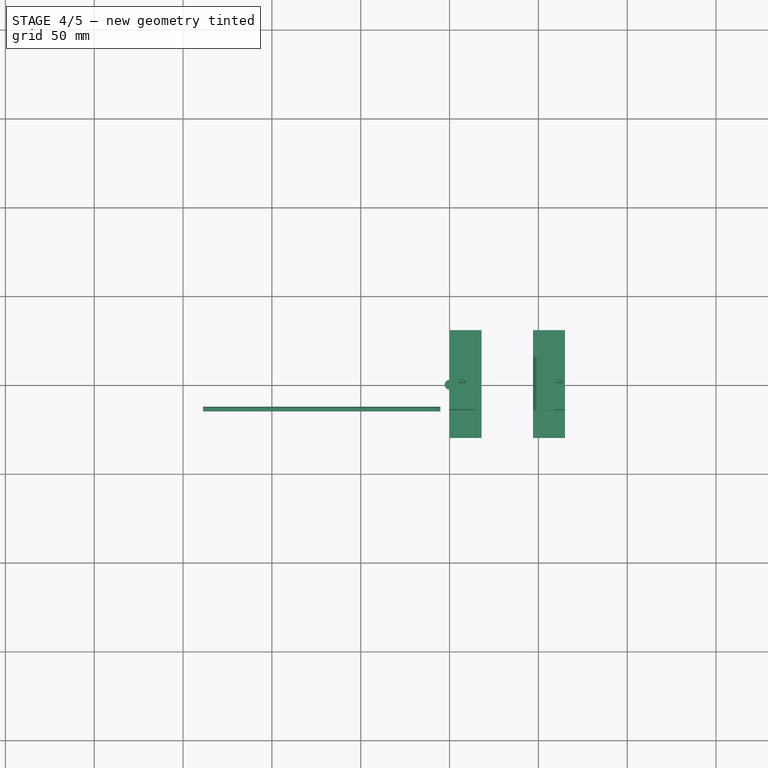
[diagram: stage 4 of 5 — top view after this stage's code; geometry added in this stage tinted green]
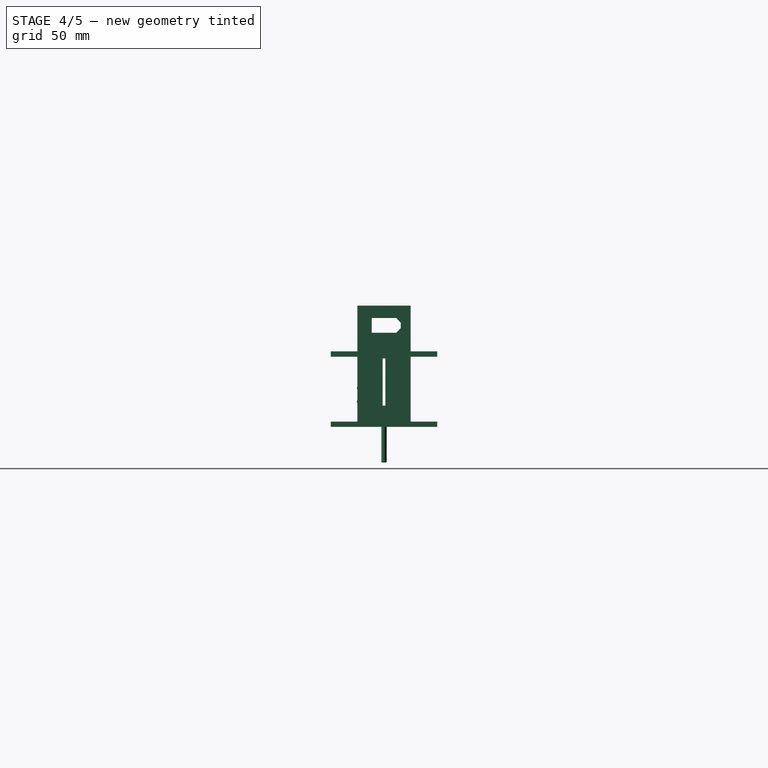
[diagram: stage 4 of 5 — right view after this stage's code; geometry added in this stage tinted green]
FEATURE [Part::FeaturePython] Slice_child0  label="Slice.0"  # WARN: FeaturePython — macro-defined, semantics opaque (R4)
  Base = -> Slice
  FilterType = 1
  Invert = false
  OverrideMaxVal = 0
  WindowFrom = 80
  WindowTo = 100
  items = 0
FEATURE [Part::FeaturePython] Slice_child2  label="Slice.2"  # WARN: FeaturePython — macro-defined, semantics opaque (R4)
  Base = -> Slice
  FilterType = 1
  Invert = false
  OverrideMaxVal = 0
  WindowFrom = 80
  WindowTo = 100
  items = 2
FEATURE [App::DocumentObjectGroup] GrExplode_Slice  label="Exploded Slice"
  Group = -> [Slice_child0,Slice_child1,Slice_child2]
FEATURE [PartDesign::FeatureBase] Clone
  BaseFeature = -> Slice_child0
FEATURE [PartDesign::Body] Body004  label="outillageFem"
  BaseFeature = -> Slice_child0
  Group = -> [Clone,Chamfer,Chamfer001]
  Origin = -> Origin009
  Tip = -> Chamfer001
FEATURE [PartDesign::FeatureBase] Clone001
  BaseFeature = -> Slice_child2
FEATURE [PartDesign::Chamfer] Chamfer002
  Angle = 45
  Base = -> Clone001 [Edge5]
  BaseFeature = -> Clone001
  ChamferType = 0
  FlipDirection = false
  Size = 2
  Size2 = 1
  SupportTransform = false
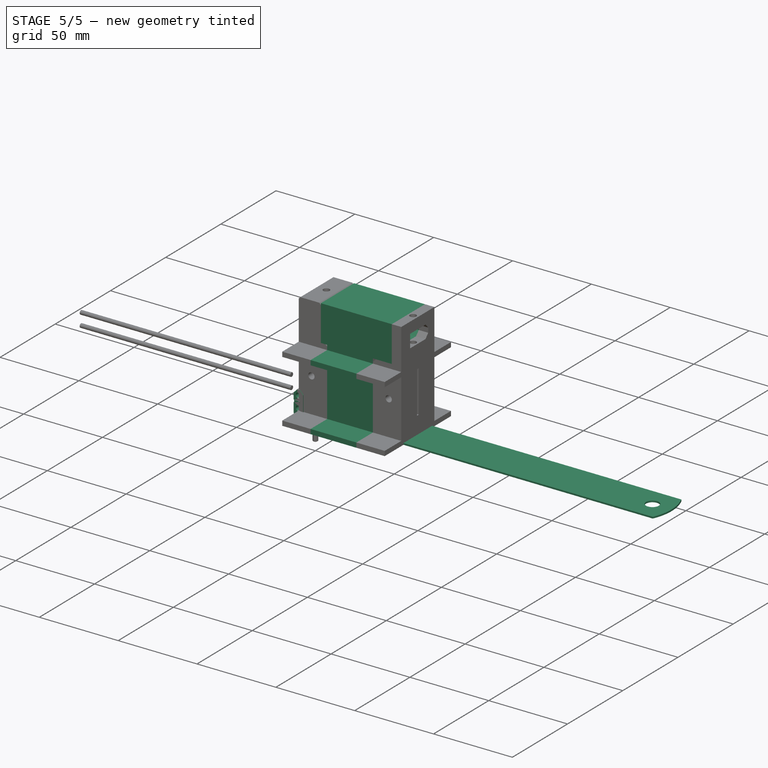
[diagram: stage 5 of 5 — iso view after this stage's code; geometry added in this stage tinted green]
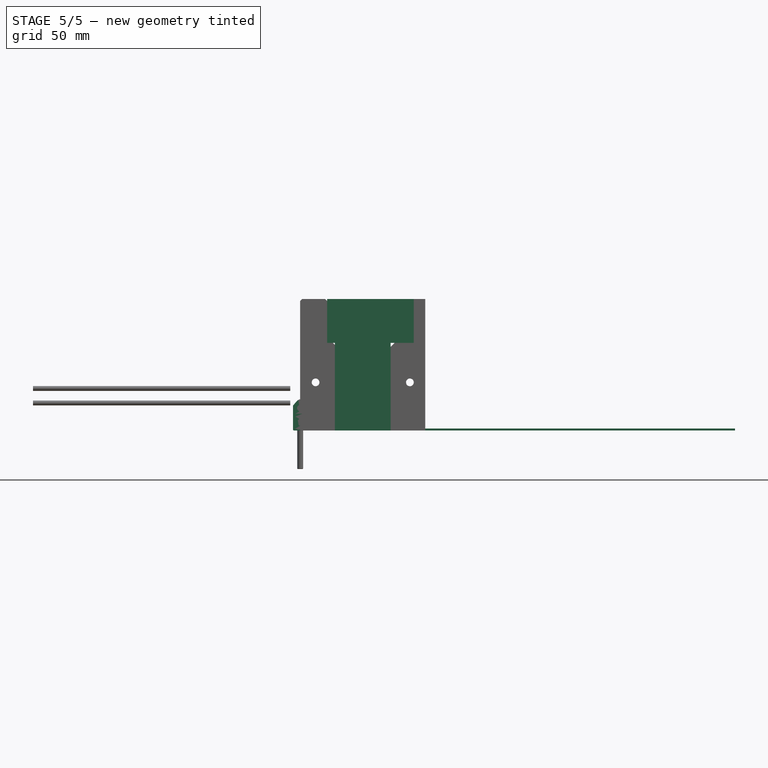
[diagram: stage 5 of 5 — front view after this stage's code; geometry added in this stage tinted green]
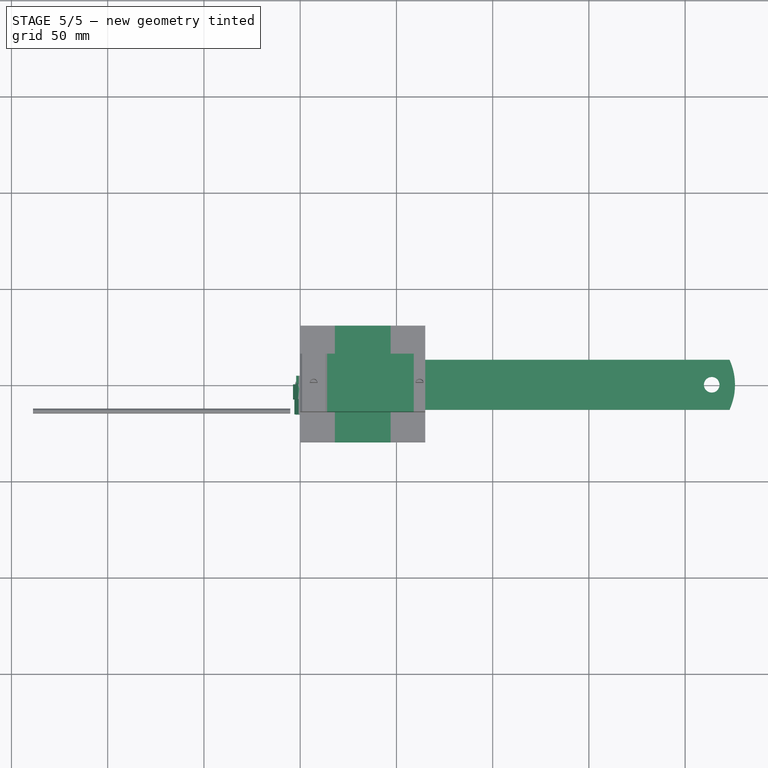
[diagram: stage 5 of 5 — top view after this stage's code; geometry added in this stage tinted green]
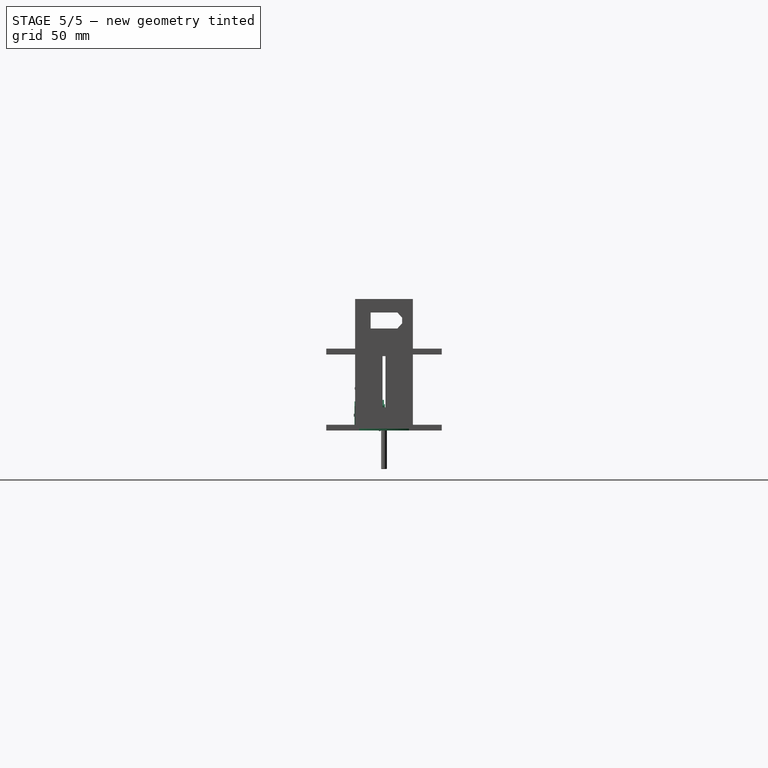
[diagram: stage 5 of 5 — right view after this stage's code; geometry added in this stage tinted green]
FEATURE [Spreadsheet::Sheet] Spreadsheet001  label="regletSp"
  cells = A2=long; B2(long)=213.8; C2=axe trou; A3=larg; B3(larg)=26; A4=ep; B4(ep)=1; A5=trouDiam; B5(trouDiam)=8.1; A6=boutRayon; B6(boutRayon)=24
FEATURE [Spreadsheet::Sheet] Spreadsheet002  label="xtSp"
  cells = A2=base; B2(base)=8.300000000000001; A3=haut; B3(haut)=13.25; A4=toitHaut; B4(toitHaut)=2.5; A5=fetierLarg; B5(fetierLarg)=3; A6=huteurTotale; B6==haut + toitHaut
FEATURE [Sketcher::SketchObject] Sketch001
  FullyConstrained = true
  MapMode = 5
  Placement = pos=(0,0,0) rot=(1,0,0;1.5708rad)
  Support = -> [XZ_Plane005]
  expr: Constraints[16] = <<xtSp>>.fetierLarg
  expr: Constraints[17] = <<xtSp>>.toitHaut
  expr: Constraints[14] = <<xtSp>>.haut
  expr: Constraints[13] = <<xtSp>>.base
  sketch-geometry (7):
    g0: LineSegment StartX=-4.15 StartY=0 StartZ=0 EndX=-4.15 EndY=13.25 EndZ=0
    g1: LineSegment StartX=-4.15 StartY=13.25 StartZ=0 EndX=-1.5 EndY=15.75 EndZ=0
    g2: LineSegment StartX=-1.5 StartY=15.75 StartZ=0 EndX=1.5 EndY=15.75 EndZ=0
    g3: LineSegment StartX=1.5 StartY=15.75 StartZ=0 EndX=4.15 EndY=13.25 EndZ=0
    g4: LineSegment StartX=4.15 StartY=13.25 StartZ=0 EndX=4.15 EndY=0 EndZ=0
    g5: LineSegment StartX=4.15 StartY=0 StartZ=0 EndX=-4.15 EndY=0 EndZ=0
    g6: LineSegment StartX=-4.15 StartY=13.25 StartZ=0 EndX=4.15 EndY=13.25 EndZ=0
  constraints (18):
    c: PointOnObject(g0,g-1)
    c: Vertical(g0)
    c: Coincident(g0,g1)
    c: Coincident(g1,g2)
    c: Coincident(g2,g3)
    c: Coincident(g3,g4)
    c: Vertical(g4)
    c: Coincident(g4,g5)
    c: Coincident(g5,g0)
    c: Symmetric(g0,g4,g-2)
    c: Coincident(g6,g0)
    c: Coincident(g6,g3)
    c: Horizontal(g6)
    c: DistanceX(g5,g5) = 8.3
    c: DistanceY(g4,g4) = 13.25
    c: Symmetric(g1,g2,g-2)
    c: DistanceX(g2,g2) = 3
    c: DistanceY(g0,g1) = 2.5
FEATURE [PartDesign::Body] Body002
  Group = -> [Sketch001]
  Origin = -> Origin005
FEATURE [Sketcher::SketchObject] Sketch
  FullyConstrained = true
  MapMode = 5
  Support = -> [XY_Plane003]
  expr: Constraints[8] = <<regletSp>>.larg
  expr: Constraints[9] = <<regletSp>>.long
  expr: Constraints[10] = <<regletSp>>.trouDiam
  sketch-geometry (6):
    g0: Circle CenterX=213.8 CenterY=0 CenterZ=0 NormalX=0 NormalY=0 NormalZ=1 AngleXU=0 Radius=4.05
    g1: LineSegment StartX=223.054 StartY=13 StartZ=0 EndX=0 EndY=13 EndZ=0
    g2: LineSegment StartX=0 StartY=13 StartZ=0 EndX=0 EndY=-13 EndZ=0
    g3: LineSegment StartX=0 StartY=-13 StartZ=0 EndX=223.054 EndY=-13 EndZ=0
    g4: LineSegment StartX=223.054 StartY=13 StartZ=0 EndX=223.054 EndY=-13 EndZ=0
    g5: ArcOfCircle CenterX=194.68 CenterY=-5.5e-15 CenterZ=0 NormalX=0 NormalY=0 NormalZ=1 AngleXU=0 Radius=31.21 StartAngle=5.85356 EndAngle=6.71281
  constraints (17):
    c: PointOnObject(g0,g-1)
    c: Horizontal(g1)
    c: Coincident(g1,g2)
    c: Vertical(g2)
    c: Coincident(g2,g3)
    c: Horizontal(g3)
    c: Symmetric(g2,g1,g-1)
    c: Vertical(g4)
    c: DistanceY(g2,g2) = 26
    c: DistanceX(g2,g0) = 213.8
    c: Diameter(g0) = 8.1
    c: Coincident(g1,g4)
    c: Coincident(g3,g4)
    c: Coincident(g5,g1)
    c: Coincident(g5,g3)
    c: DistanceX(g-1,g5) = 194.68
    c: Diameter(g5) = 62.42
FEATURE [Part::Feature] Solid
  shape: bbox 19.85 x 5.084 x 5.084 mm, 17 faces (baked)
FEATURE [Part::Feature] Solid001
  shape: bbox 19.85 x 5.084 x 5.084 mm, 17 faces (baked)
FEATURE [Part::Feature] Solid002
  shape: bbox 15.7 x 7.5 x 16.55 mm, 359 faces (baked)
FEATURE [Part::Compound2] Compound  label="XT60MaleConnector"
  Links = -> [Solid,Solid001,Solid002]
  Placement = pos=(6.2e-15,-8,6.5) rot=(-0.707107,-0.707107,0;3.14159rad)
FEATURE [App::Part] Part002  label="xt"
  Group = -> [Spreadsheet002,Body002,Solid002,Solid,Solid001,Compound]
  Origin = -> Origin004
  Placement = pos=(146.5,-7,57.1) rot=(0.57735,-0.57735,-0.57735;4.18879rad)
FEATURE [PartDesign::Pad] Pad
  Direction = (1,1,1)
  Length = 1
  Length2 = 100
  Profile = -> Sketch
  Type = 0
  expr: Length = <<regletSp>>.ep
FEATURE [Part::FeaturePython] Slice_child1  label="Slice.1"  # WARN: FeaturePython — macro-defined, semantics opaque (R4)
  Base = -> Slice
  FilterType = 1
  Invert = false
  OverrideMaxVal = 0
  WindowFrom = 80
  WindowTo = 100
  items = 1
FEATURE [PartDesign::Chamfer] Chamfer
  Angle = 45
  Base = -> Clone [Edge45]
  BaseFeature = -> Clone
  ChamferType = 0
  FlipDirection = false
  Size = 1
  Size2 = 1
  SupportTransform = false
FEATURE [PartDesign::Chamfer] Chamfer001
  Angle = 45
  Base = -> Chamfer [Edge77,Edge84]
  BaseFeature = -> Chamfer
  ChamferType = 0
  FlipDirection = false
  Size = 1
  Size2 = 1
  SupportTransform = false
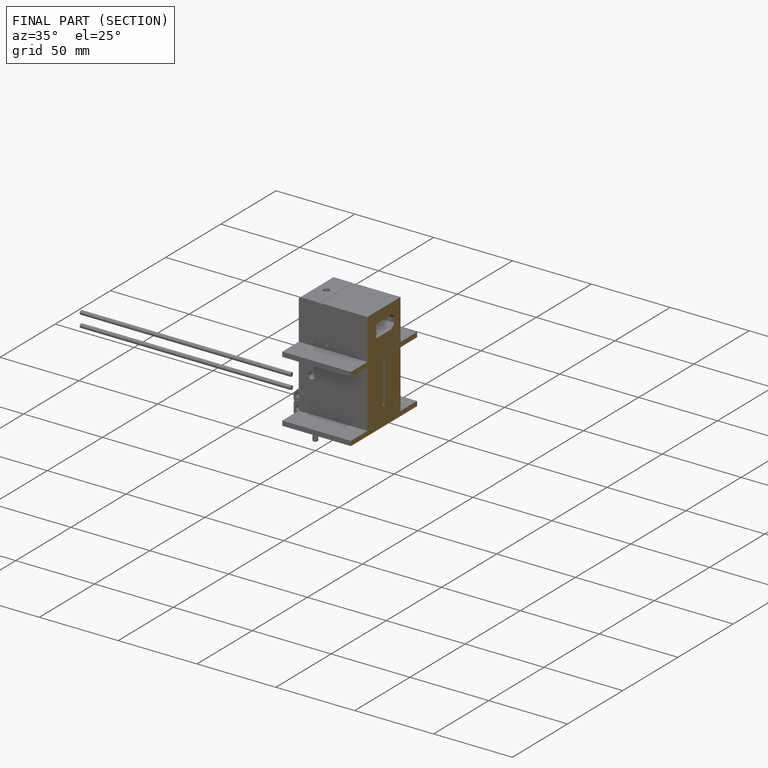
[diagram: finished part — half-section view (interior)]
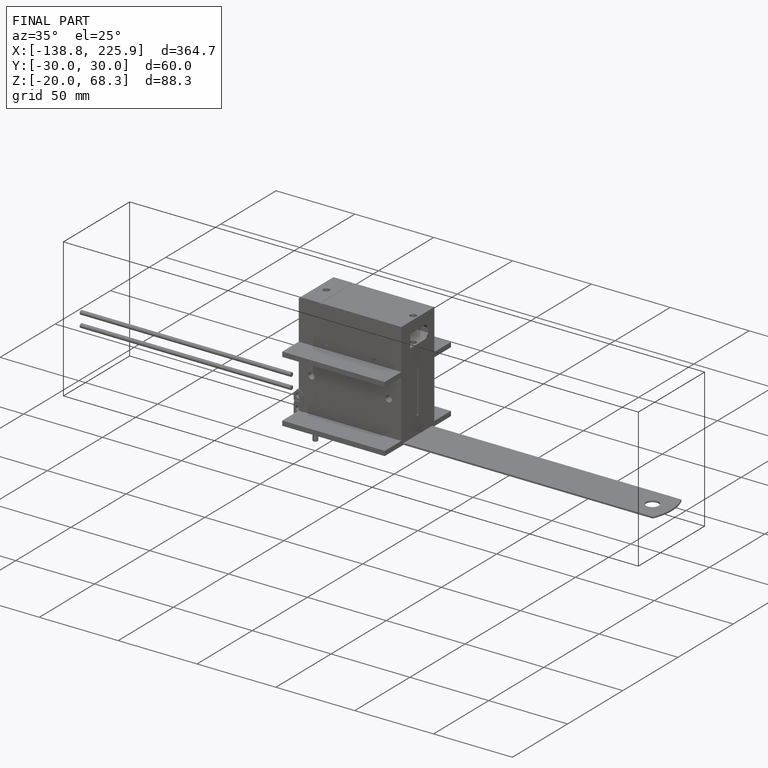
[diagram: finished part — iso view with bounding-box wireframe]
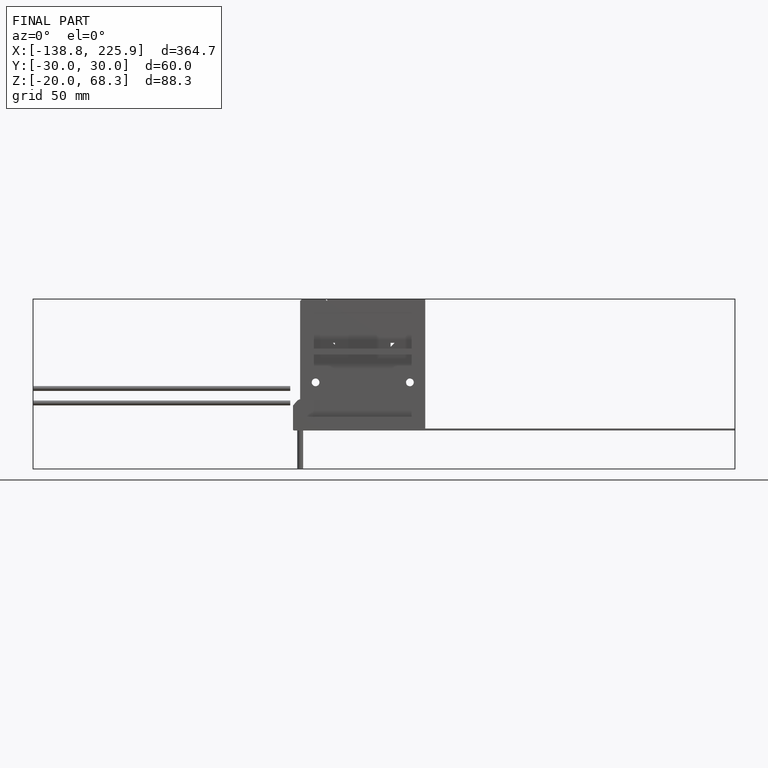
[diagram: finished part — front view with bounding-box wireframe]
